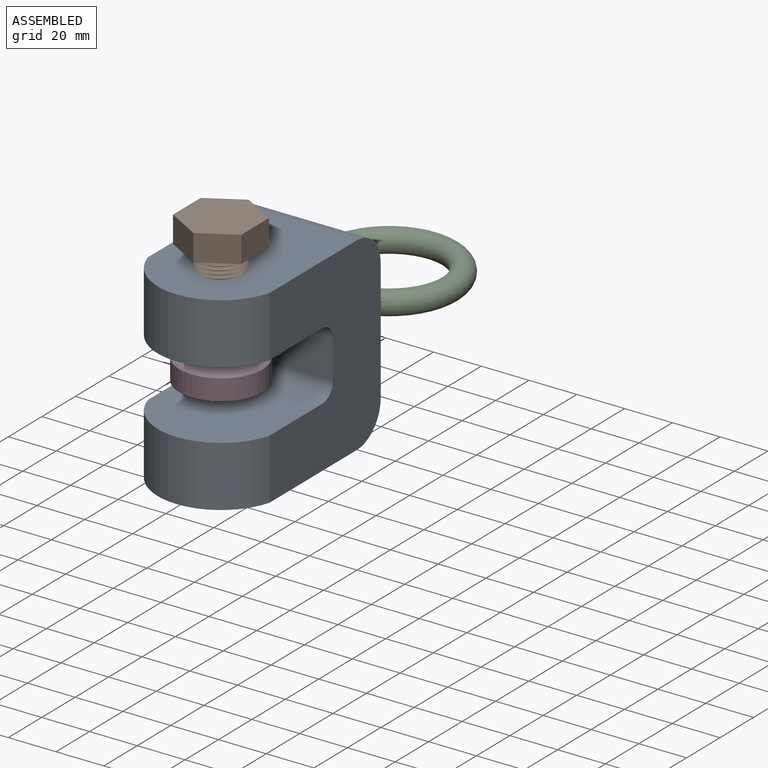
[diagram: assembled view]
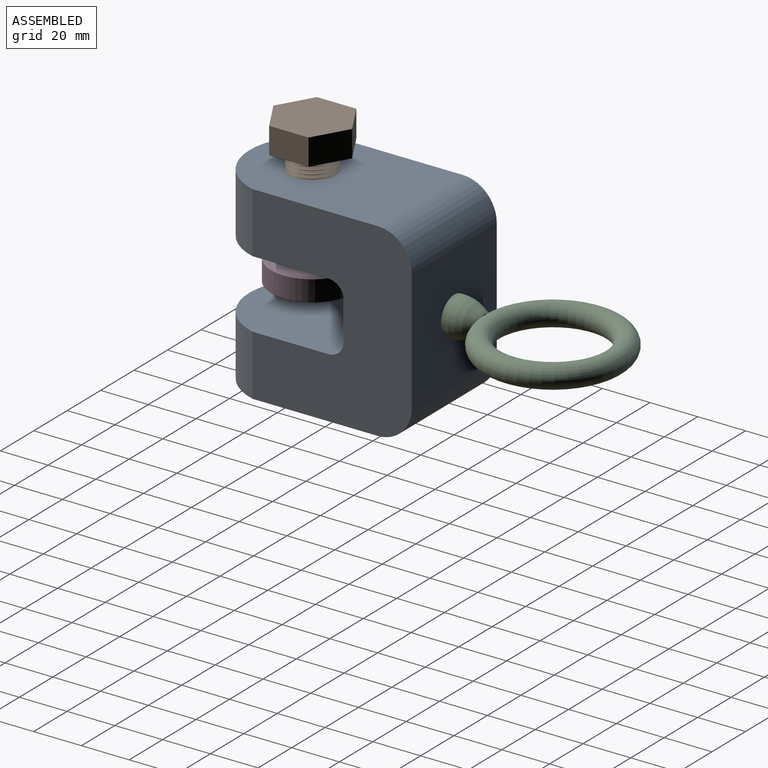
[diagram: assembled view, second angle]
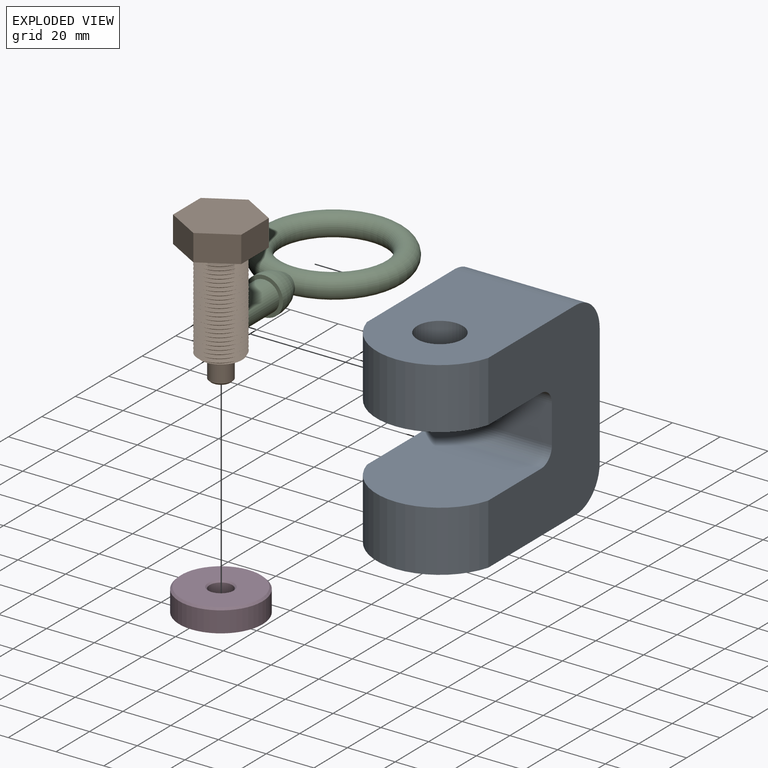
[diagram: exploded view]
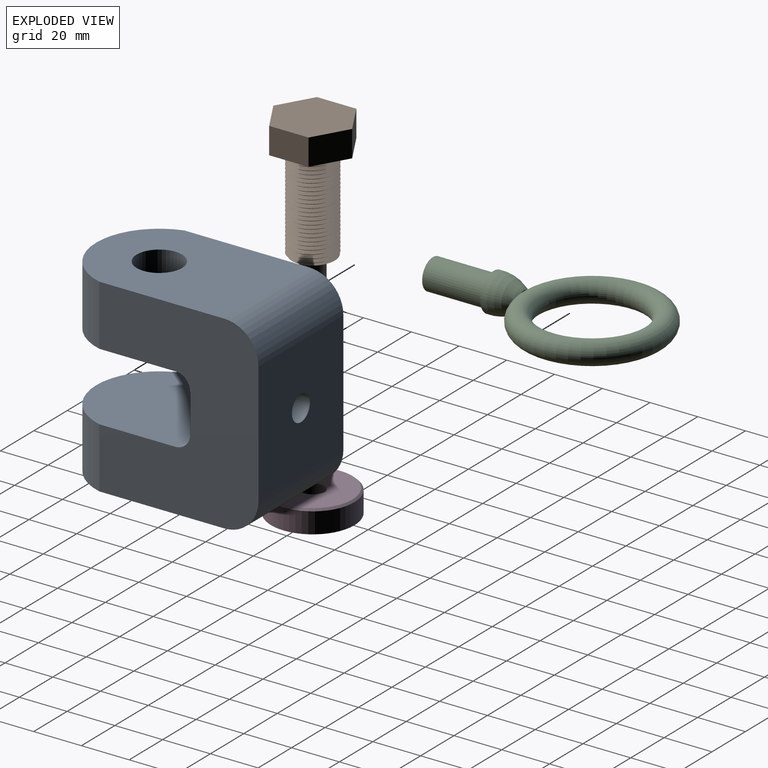
[diagram: exploded view, second angle]
ASSEMBLY  parts=4 mates=3
PART A: 17 faces, bbox 79.4x50.8x85.7 mm
  f0: plane 50.8x50.8mm, normal (1,0,0), area 2325.7mm2, adj f7,f10,f11,f12
  f1: plane 50.8x50.8mm, normal (-1,0,0), area 2325.7mm2, adj f9,f10,f11,f13
  f2: plane 71.44x50.8mm, normal (1,0,0), area 3089mm2, adj f3,f10,f11,f13,f16
  f3: cylinder r=14.29mm len=50.8mm, axis (0,1,0), area 1140.1mm2, adj f2,f4,f10,f11
  f4: plane 50.8x50.8mm, normal (0,0,1), area 2490.4mm2, adj f3,f5,f10,f11,f14
  f5: cylinder r=14.29mm len=50.8mm, axis (0,1,0), area 1140.1mm2, adj f4,f6,f10,f11
  f6: plane 71.44x50.8mm, normal (-1,0,0), area 3374.1mm2, adj f5,f10,f11,f12
  f7: cylinder r=6.35mm len=50.8mm, axis (0,1,0), area 506.7mm2, adj f0,f8,f10,f11
  f8: plane 50.8x15.88mm, normal (0,0,-1), area 716.3mm2, adj f7,f9,f10,f11,f14
  f9: cylinder r=6.35mm len=50.8mm, axis (0,1,0), area 506.7mm2, adj f1,f8,f10,f11
  f10: plane 79.38x66.68mm, normal (0,-1,0), area 4133.3mm2, adj f0,f1,f2,f3,f4,f5,f6,f7
  f11: plane 79.38x66.68mm, normal (0,1,0), area 4133.3mm2, adj f0,f1,f2,f3,f4,f5,f6,f7
  f12: cylinder r=26.46mm len=50.8mm, axis (-1,0,0), area 1729.8mm2, adj f0,f6,f10,f11
  f13: cylinder r=26.46mm len=50.8mm, axis (-1,0,0), area 1729.8mm2, adj f1,f2,f10,f11
  f14: cylinder r=5.36mm len=28.58mm, axis (0,0,1), area 962mm2, adj f4,f8
  f15: cone r=0mm half-angle=59deg, axis (1,0,0), area 332.5mm2, adj f16
  f16: cylinder r=9.53mm len=19.05mm, axis (1,0,0), area 1121.1mm2, adj f2,f15
PART B: 18 faces, bbox 33x28.6x61.9 mm
  f0: cylinder r=9.53mm len=40.49mm, axis (0,0,1), area 721.6mm2, adj f7,f9,f11,f12,f13
  f1: plane 16.5x11.11mm, normal (0,1,0), area 183.3mm2, adj f2,f6,f7,f8
  f2: plane 14.29x11.11mm, normal (-0.87,0.5,0), area 183.3mm2, adj f1,f3,f7,f8
  f3: plane 14.29x11.11mm, normal (-0.87,-0.5,0), area 183.3mm2, adj f2,f4,f7,f8
  f4: plane 16.5x11.11mm, normal (0,-1,0), area 183.3mm2, adj f3,f5,f7,f8
  f5: plane 14.29x11.11mm, normal (0.87,-0.5,0), area 183.3mm2, adj f4,f6,f7,f8
  f6: plane 14.29x11.11mm, normal (0.87,0.5,0), area 183.3mm2, adj f1,f5,f7,f8
  f7: plane 33x28.58mm, normal (0,0,-1), area 422.1mm2, adj f0,f1,f2,f3,f4,f5,f6,f10
  f8: plane 33x28.58mm, normal (0,0,1), area 707.1mm2, adj f1,f2,f3,f4,f5,f6
  f9: plane 1.57x1.36mm, normal (-1,0,0), area 1.1mm2, adj f0,f10,f11,f12
  f10: cylinder r=9.53mm len=19.05mm, axis (0,0,1), area 11.7mm2, adj f7,f9,f12
  f11: bspline ~42.06x22mm, area 2215.5mm2, adj f0,f9,f12,f13
  f12: bspline ~42.06x22mm, area 2287.8mm2, adj f0,f9,f10,f11,f13
  f13: cone r=9.53mm half-angle=60deg, axis (0,0,1), area 43mm2, adj f0,f11,f12,f17
  f14: plane 7.94x7.94mm, normal (0,0,-1), area 49.5mm2, adj f15
  f15: cone r=3.97mm half-angle=45deg, axis (0,0,1), area 30.8mm2, adj f14,f16
  f16: cylinder r=4.76mm len=9.53mm, axis (0,0,-1), area 261.3mm2, adj f15,f17
  f17: plane 16.32x16.32mm, normal (0,0,-1), area 138mm2, adj f13,f16
PART C: 7 faces, bbox 15.9x65.3x99.3 mm
  f0: revolved ~15.93x15.93mm, area 557mm2, adj f1,f2,f3,f4
  f1: plane 3.72x0.46mm, normal (0,0,1), area 1mm2, adj f0,f4
  f2: plane 3.72x0.46mm, normal (0,0,1), area 1mm2, adj f0,f4
  f3: plane 15.88x15.88mm, normal (0,0,-1), area 71.3mm2, adj f0,f5
  f4: torus R=25.4mm, axis (-1,0,0), area 4713.3mm2, adj f0,f1,f2
  f5: cylinder r=6.35mm len=25.4mm, axis (0,0,1), area 1013.4mm2, adj f3,f6
  f6: plane 12.7x12.7mm, normal (0,0,-1), area 126.7mm2, adj f5
PART D: 24 faces, bbox 34.9x34.9x9.5 mm
  f0: plane 14.95x14.95mm, normal (0,0,1), area 48.8mm2, adj f5,f11
  f1: cylinder r=4.76mm len=9.53mm, axis (0,0,1), area 235.6mm2, adj f6,f23
  f2: cylinder r=17.46mm len=34.93mm, axis (0,0,-1), area 955.9mm2, adj f3,f22
  f3: plane 34.93x34.93mm, normal (0,0,1), area 89mm2, adj f2,f8
  f4: plane 33.3x33.3mm, normal (0,0,-1), area 779.4mm2, adj f22,f23
  f5: cylinder r=6.35mm len=12.7mm, axis (0,0,1), area 40.5mm2, adj f0,f6
  f6: plane 12.7x12.7mm, normal (0,0,1), area 55.4mm2, adj f1,f5
  f7: cylinder r=15.82mm len=31.64mm, axis (0,0,1), area 63.1mm2, adj f9,f10
  f8: cylinder r=16.63mm len=33.26mm, axis (0,0,1), area 66.4mm2, adj f3,f9
  f9: plane 33.26x33.26mm, normal (0,0,1), area 82.6mm2, adj f7,f8
  f10: plane 31.64x31.64mm, normal (0,0,1), area 152mm2, adj f7,f15
  f11: cylinder r=7.47mm len=14.95mm, axis (0,0,1), area 29.8mm2, adj f0,f13
  f12: cylinder r=8.39mm len=16.78mm, axis (0,0,1), area 33.5mm2, adj f13,f21
  f13: plane 16.78x16.78mm, normal (0,0,1), area 45.7mm2, adj f11,f12
  f14: cylinder r=13.34mm len=26.69mm, axis (0,0,1), area 53.2mm2, adj f16,f17
  f15: cylinder r=14.21mm len=28.42mm, axis (0,0,1), area 56.7mm2, adj f10,f16
  f16: plane 28.42x28.42mm, normal (0,0,1), area 74.9mm2, adj f14,f15
  f17: plane 26.69x26.69mm, normal (0,0,1), area 151.1mm2, adj f14,f19
  f18: cylinder r=10.49mm len=20.99mm, axis (0,0,1), area 41.9mm2, adj f20,f21
  f19: cylinder r=11.4mm len=22.8mm, axis (0,0,1), area 45.5mm2, adj f17,f20
  f20: plane 22.8x22.8mm, normal (0,0,1), area 62.4mm2, adj f18,f19
  f21: plane 20.99x20.99mm, normal (0,0,1), area 124.8mm2, adj f12,f18
  f22: cone r=17.46mm half-angle=45deg, axis (0,0,1), area 123.2mm2, adj f2,f4
  f23: cone r=5.4mm half-angle=45deg, axis (0,0,-1), area 28.7mm2, adj f1,f4
PLACE A rot(axis=(-0.58,-0.58,-0.58),120deg) t=(30.26,-63.35,9.48)mm
PLACE B rot(axis=(0,0,-1),90deg) t=(4.86,-79.75,57.52)mm
PLACE C rot(axis=(-0.58,0.58,0.58),120deg) t=(4.86,-20.49,9.48)mm
PLACE D rot(axis=(-1,0,0),180deg) t=(4.86,-79.75,16.25)mm
MATE cylindrical D.f1 <-> B.f15  axis (0,0,-1) through (4.86,-79.75,11.67)mm
MATE planar D.f11 <-> B.f13  axis (0,0,1) through (4.86,-79.75,16.25)mm
MATE planar C.f5 <-> A.f14  axis (0,-1,0) through (4.86,-20.49,9.48)mm
